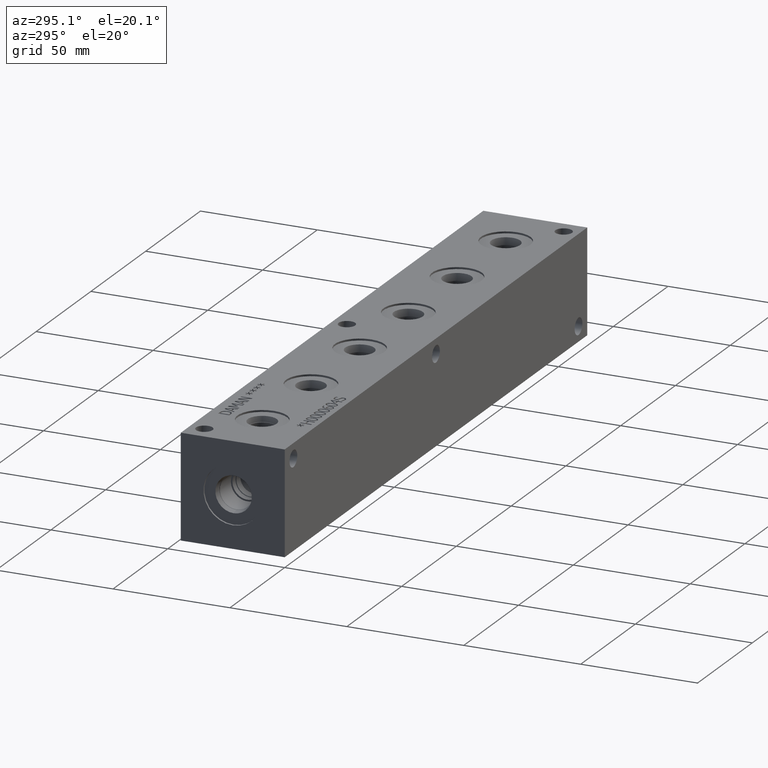
[diagram: clean part render]
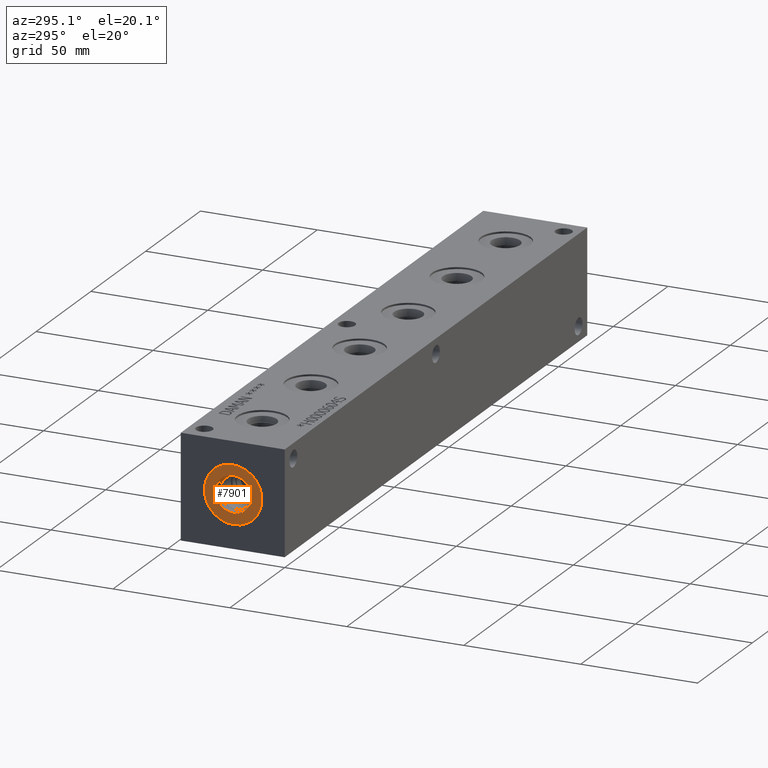
[diagram: same view with one face highlighted and labeled with its STEP entity id]
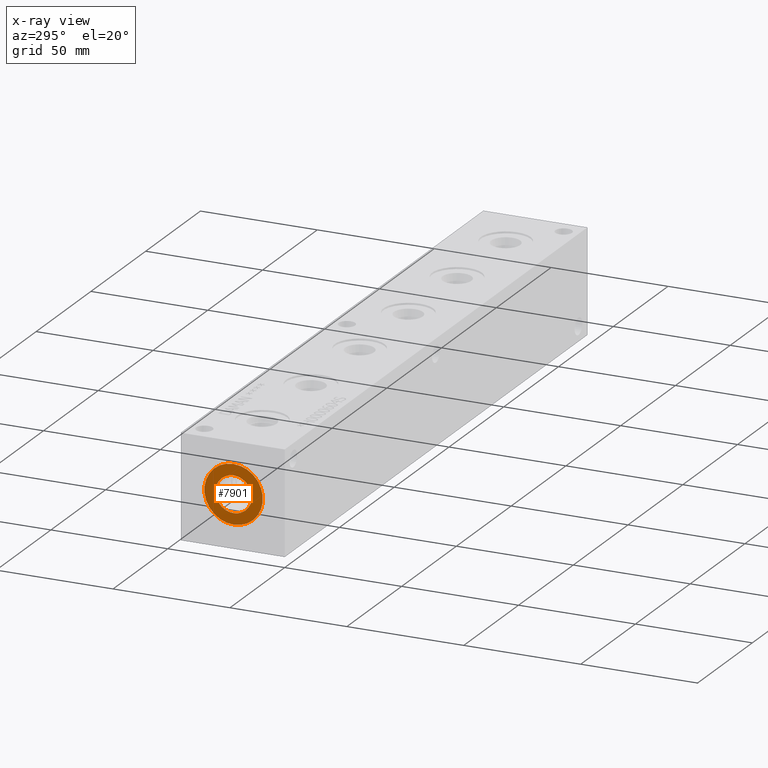
[diagram: x-ray of the same camera — body ghosted, the highlighted face saturated]
A machine part, auxiliary view. The second image highlights one B-rep face of the part: STEP entity #7901.
The next image is the same camera in x-ray: the body ghosted, the highlighted face saturated — about 0% of this face is hidden behind the body in this view.
In plain terms, the highlighted planar face has unit normal (1, 0, 0).
Its self-contained STEP definition (entity closure, byte-faithful):
#261=CIRCLE('',#8386,12.5095);
#262=CIRCLE('',#8387,12.5095);
#263=CIRCLE('',#8389,7.7978);
#264=CIRCLE('',#8390,7.7978);
#322=FACE_BOUND('',#1507,.T.);
#1043=FACE_OUTER_BOUND('',#1506,.T.);
#1506=EDGE_LOOP('',(#6920,#6921));
#1507=EDGE_LOOP('',(#6922,#6923));
#3684=VERTEX_POINT('',#13618);
#3685=VERTEX_POINT('',#13620);
#3686=VERTEX_POINT('',#13624);
#3687=VERTEX_POINT('',#13625);
#4772=EDGE_CURVE('',#3684,#3685,#261,.T.);
#4773=EDGE_CURVE('',#3685,#3684,#262,.T.);
#4774=EDGE_CURVE('',#3686,#3687,#263,.T.);
#4775=EDGE_CURVE('',#3687,#3686,#264,.T.);
#6920=ORIENTED_EDGE('',*,*,#4773,.F.);
#6921=ORIENTED_EDGE('',*,*,#4772,.F.);
#6922=ORIENTED_EDGE('',*,*,#4774,.T.);
#6923=ORIENTED_EDGE('',*,*,#4775,.T.);
#7198=PLANE('',#8388);
#7901=ADVANCED_FACE('',(#1043,#322),#7198,.F.);
#8386=AXIS2_PLACEMENT_3D('',#13621,#10034,#10035);
#8387=AXIS2_PLACEMENT_3D('',#13622,#10036,#10037);
#8388=AXIS2_PLACEMENT_3D('',#13623,#10038,#10039);
#8389=AXIS2_PLACEMENT_3D('',#13626,#10040,#10041);
#8390=AXIS2_PLACEMENT_3D('',#13627,#10042,#10043);
#10034=DIRECTION('center_axis',(1.,0.,0.));
#10035=DIRECTION('ref_axis',(0.,0.,-1.));
#10036=DIRECTION('center_axis',(1.,0.,0.));
#10037=DIRECTION('ref_axis',(0.,0.,-1.));
#10038=DIRECTION('center_axis',(1.,0.,0.));
#10039=DIRECTION('ref_axis',(0.,0.,-1.));
#10040=DIRECTION('center_axis',(1.,0.,0.));
#10041=DIRECTION('ref_axis',(0.,0.,-1.));
#10042=DIRECTION('center_axis',(1.,0.,0.));
#10043=DIRECTION('ref_axis',(0.,0.,-1.));
#13618=CARTESIAN_POINT('',(0.7874,22.225,9.7155));
#13620=CARTESIAN_POINT('',(0.7874,22.225,34.7345));
#13621=CARTESIAN_POINT('Origin',(0.7874,22.225,22.225));
#13622=CARTESIAN_POINT('Origin',(0.7874,22.225,22.225));
#13623=CARTESIAN_POINT('Origin',(0.7874,22.225,30.0228));
#13624=CARTESIAN_POINT('',(0.7874,22.225,30.0228));
#13625=CARTESIAN_POINT('',(0.787400000000001,22.225,14.4272));
#13626=CARTESIAN_POINT('Origin',(0.7874,22.225,22.225));
#13627=CARTESIAN_POINT('Origin',(0.7874,22.225,22.225));